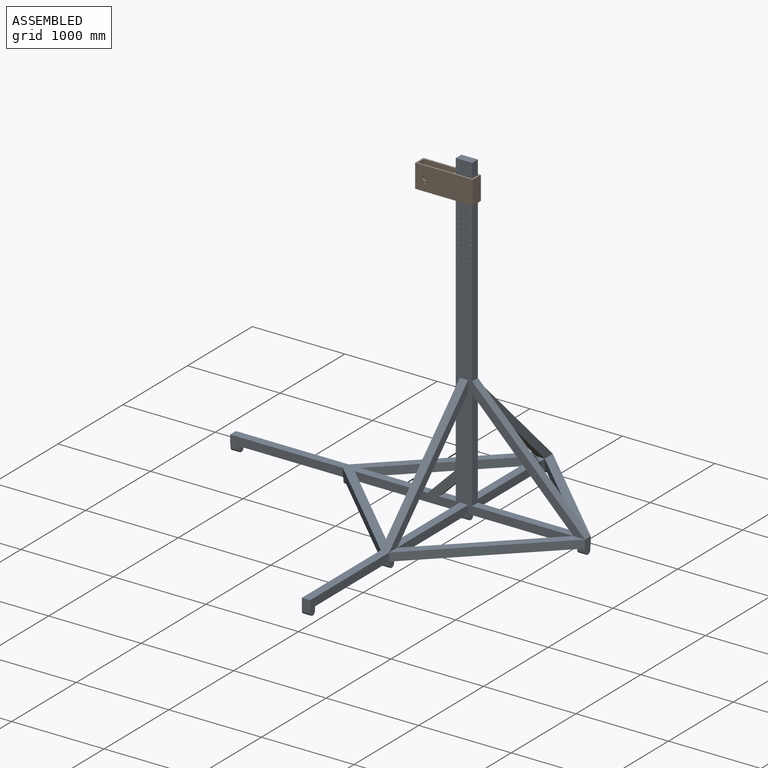
[diagram: assembled view]
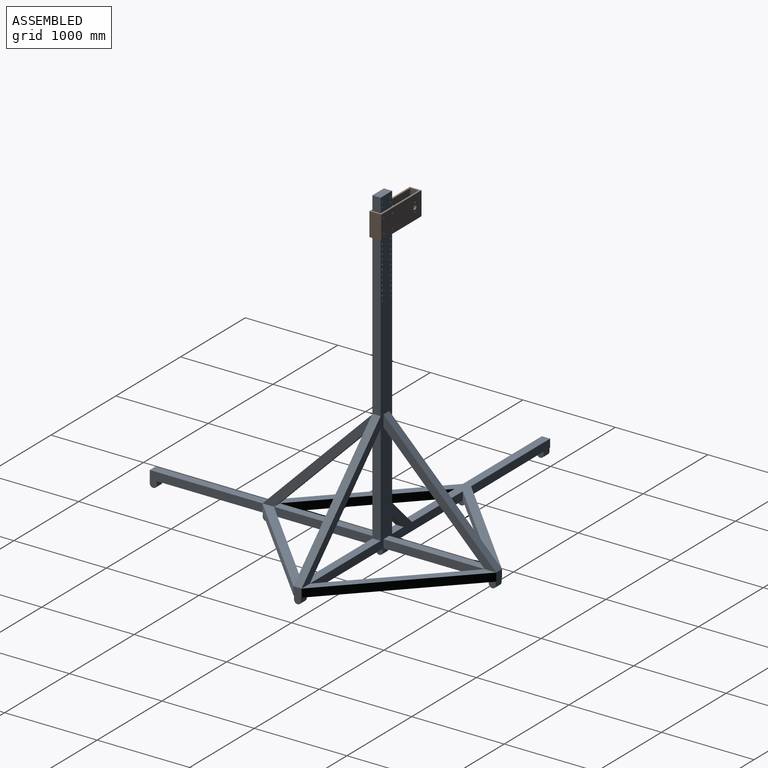
[diagram: assembled view, second angle]
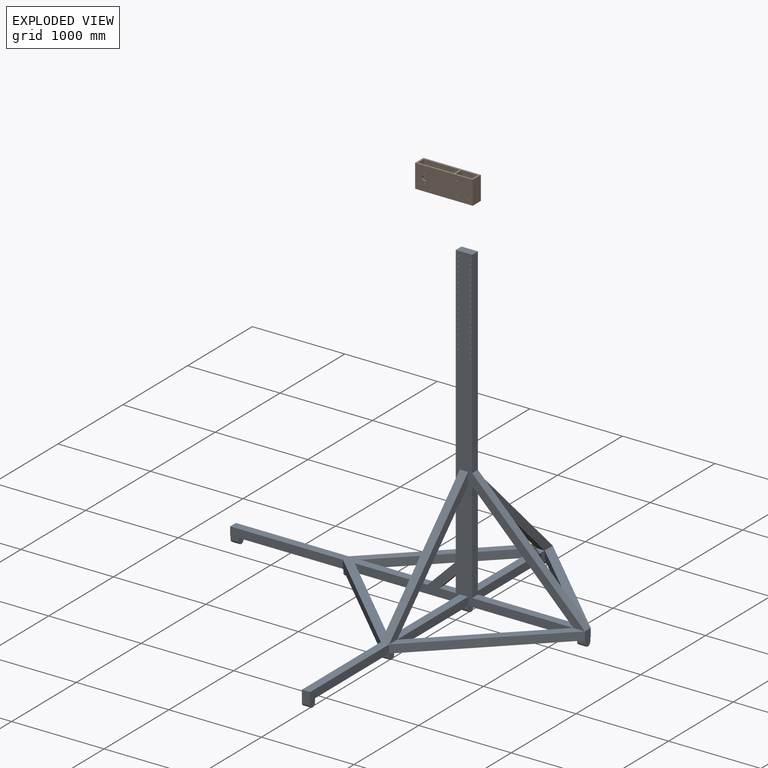
[diagram: exploded view]
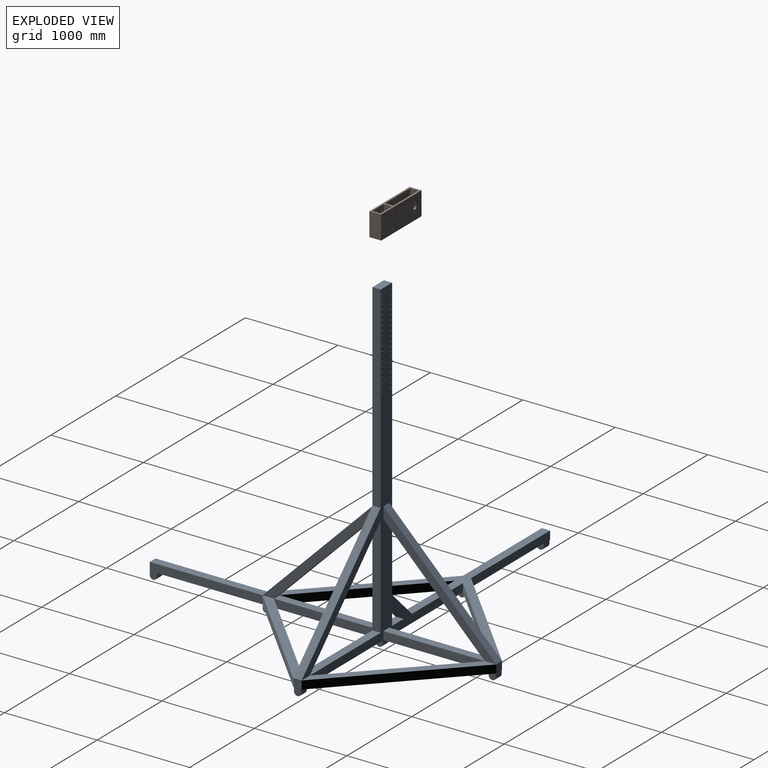
[diagram: exploded view, second angle]
ASSEMBLY  parts=2 mates=3
PART A: 112 faces, bbox 3835.4x3746.5x3517.9 mm
  f0: plane 3835.4x3670.3mm, normal (0,0,-1), area 1211481mm2, adj f1,f2,f3,f7,f10,f56,f57,f58
  f1: plane 1308.1x1219.2mm, normal (-1,0,0), area 242783.9mm2, adj f0,f2,f6,f55,f71,f72,f78
  f2: plane 3441.7x2488.16mm, normal (0,-1,0), area 957592.4mm2, adj f0,f1,f4,f5,f6,f8,f9,f12
  f3: plane 1219.2x165.1mm, normal (1,0,0), area 113570.3mm2, adj f0,f61,f62,f75,f82,f83
  f4: plane 179.08x88.9mm, normal (-1,0,0), area 15919.9mm2, adj f2,f5,f10,f73
  f5: plane 179.08x88.9mm, normal (0,0,1), area 15919.9mm2, adj f2,f4,f10,f73
  f6: plane 1093.48x88.9mm, normal (0,0,1), area 97210.1mm2, adj f1,f2,f60,f72
  f7: plane 1308.1x1219.2mm, normal (1,0,0), area 242783.9mm2, adj f0,f9,f10,f11,f63,f64,f68
  f8: plane 2133.6x88.9mm, normal (1,0,0), area 189677mm2, adj f2,f10,f14,f65
  f9: plane 2527.3x1263.65mm, normal (0,0,1), area 393596.3mm2, adj f2,f7,f10,f13,f60,f66,f67,f68
  f10: plane 3441.7x2488.16mm, normal (0,1,0), area 957592.4mm2, adj f0,f4,f5,f7,f8,f9,f11,f12
  f11: plane 1093.48x88.9mm, normal (0,0,1), area 97210.1mm2, adj f7,f10,f57,f64
  f12: plane 3048x88.9mm, normal (-1,0,0), area 270967.2mm2, adj f2,f10,f14,f74
  f13: plane 1093.48x88.9mm, normal (1,0,0), area 97210.1mm2, adj f2,f9,f10,f66
  f14: plane 177.8x88.9mm, normal (0,0,1), area 15806.4mm2, adj f2,f8,f10,f12
  f15: cylinder r=6.35mm len=88.9mm, axis (0,-1,0), area 3547mm2, adj f2,f10
  f16: cylinder r=6.35mm len=88.9mm, axis (0,-1,0), area 3547mm2, adj f2,f10
  f17: cylinder r=6.35mm len=88.9mm, axis (0,-1,0), area 3547mm2, adj f2,f10
  f18: cylinder r=6.35mm len=88.9mm, axis (0,-1,0), area 3547mm2, adj f2,f10
  f19: cylinder r=6.35mm len=88.9mm, axis (0,-1,0), area 3547mm2, adj f2,f10
  f20: cylinder r=6.35mm len=88.9mm, axis (0,-1,0), area 3547mm2, adj f2,f10
  f21: cylinder r=6.35mm len=88.9mm, axis (0,-1,0), area 3547mm2, adj f2,f10
  f22: cylinder r=6.35mm len=88.9mm, axis (0,-1,0), area 3547mm2, adj f2,f10
  f23: cylinder r=6.35mm len=88.9mm, axis (0,-1,0), area 3547mm2, adj f2,f10
  f24: cylinder r=6.35mm len=88.9mm, axis (0,-1,0), area 3547mm2, adj f2,f10
  f25: cylinder r=6.35mm len=88.9mm, axis (0,-1,0), area 3547mm2, adj f2,f10
  f26: cylinder r=6.35mm len=88.9mm, axis (0,-1,0), area 3547mm2, adj f2,f10
  f27: cylinder r=6.35mm len=88.9mm, axis (0,-1,0), area 3547mm2, adj f2,f10
  f28: cylinder r=6.35mm len=88.9mm, axis (0,-1,0), area 3547mm2, adj f2,f10
  f29: cylinder r=6.35mm len=88.9mm, axis (0,-1,0), area 3547mm2, adj f2,f10
  f30: cylinder r=6.35mm len=88.9mm, axis (0,-1,0), area 3547mm2, adj f2,f10
  f31: cylinder r=6.35mm len=88.9mm, axis (0,-1,0), area 3547mm2, adj f2,f10
  f32: cylinder r=6.35mm len=88.9mm, axis (0,-1,0), area 3547mm2, adj f2,f10
  f33: cylinder r=6.35mm len=88.9mm, axis (0,-1,0), area 3547mm2, adj f2,f10
  f34: cylinder r=6.35mm len=88.9mm, axis (0,-1,0), area 3547mm2, adj f2,f10
  f35: cylinder r=6.35mm len=88.9mm, axis (0,-1,0), area 3547mm2, adj f2,f10
  f36: cylinder r=6.35mm len=88.9mm, axis (0,-1,0), area 3547mm2, adj f2,f10
  f37: cylinder r=6.35mm len=88.9mm, axis (0,-1,0), area 3547mm2, adj f2,f10
  f38: cylinder r=6.35mm len=88.9mm, axis (0,-1,0), area 3547mm2, adj f2,f10
  f39: cylinder r=6.35mm len=88.9mm, axis (0,-1,0), area 3547mm2, adj f2,f10
  f40: cylinder r=6.35mm len=88.9mm, axis (0,-1,0), area 3547mm2, adj f2,f10
  f41: cylinder r=6.35mm len=88.9mm, axis (0,-1,0), area 3547mm2, adj f2,f10
  f42: cylinder r=6.35mm len=88.9mm, axis (0,-1,0), area 3547mm2, adj f2,f10
  f43: cylinder r=6.35mm len=88.9mm, axis (0,-1,0), area 3547mm2, adj f2,f10
  f44: cylinder r=6.35mm len=88.9mm, axis (0,-1,0), area 3547mm2, adj f2,f10
  f45: cylinder r=6.35mm len=88.9mm, axis (0,-1,0), area 3547mm2, adj f2,f10
  f46: cylinder r=6.35mm len=88.9mm, axis (0,-1,0), area 3547mm2, adj f2,f10
  f47: cylinder r=6.35mm len=88.9mm, axis (0,-1,0), area 3547mm2, adj f2,f10
  f48: cylinder r=6.35mm len=88.9mm, axis (0,-1,0), area 3547mm2, adj f2,f10
  f49: cylinder r=6.35mm len=88.9mm, axis (0,-1,0), area 3547mm2, adj f2,f10
  f50: cylinder r=6.35mm len=88.9mm, axis (0,-1,0), area 3547mm2, adj f2,f10
  f51: cylinder r=6.35mm len=88.9mm, axis (0,-1,0), area 3547mm2, adj f2,f10
  f52: cylinder r=6.35mm len=88.9mm, axis (0,-1,0), area 3547mm2, adj f2,f10
  f53: cylinder r=6.35mm len=88.9mm, axis (0,-1,0), area 3547mm2, adj f2,f10
  f54: cylinder r=6.35mm len=88.9mm, axis (0,-1,0), area 3547mm2, adj f2,f10
  f55: plane 2527.3x2482.85mm, normal (0,0,1), area 486063.3mm2, adj f1,f2,f10,f57,f69,f70,f74,f77
  f56: plane 165.1x88.9mm, normal (1,0,0), area 13086.6mm2, adj f0,f65,f67,f75,f103,f104,f105
  f57: plane 1308.1x1219.2mm, normal (-1,0,0), area 242783.9mm2, adj f0,f10,f11,f55,f63,f64,f70
  f58: plane 88.9x88.9mm, normal (0,1,0), area 7903.2mm2, adj f0,f63,f67,f69
  f59: plane 1219.2x165.1mm, normal (-1,0,0), area 113570.3mm2, adj f0,f61,f62,f77,f82,f83
  f60: plane 1308.1x1219.2mm, normal (1,0,0), area 242783.9mm2, adj f0,f2,f6,f9,f71,f72,f76
  f61: plane 127x88.9mm, normal (0,-1,0), area 11290.3mm2, adj f3,f59,f62,f83
  f62: plane 1219.2x88.9mm, normal (0,0,1), area 108386.9mm2, adj f3,f59,f61,f71
  f63: plane 1219.2x1219.2mm, normal (0,0.71,0.71), area 153282.2mm2, adj f7,f10,f57,f58
  f64: plane 1093.48x1093.48mm, normal (0,-0.71,-0.71), area 137475.8mm2, adj f7,f10,f11,f57
  f65: plane 1219.2x1219.2mm, normal (0.71,0,0.71), area 153282.2mm2, adj f2,f8,f10,f56
  f66: plane 1093.48x1093.48mm, normal (-0.71,0,-0.71), area 137475.8mm2, adj f2,f9,f10,f13
  f67: plane 1263.65x1219.2mm, normal (0.69,0.72,0), area 156101.4mm2, adj f0,f9,f56,f58
  f68: plane 1135.61x1095.67mm, normal (-0.69,-0.72,0), area 140284.9mm2, adj f0,f7,f9,f10
  f69: plane 1263.65x1219.2mm, normal (-0.69,0.72,0), area 156101.4mm2, adj f0,f55,f58,f81
  f70: plane 1135.61x1095.67mm, normal (0.69,-0.72,0), area 140284.9mm2, adj f0,f10,f55,f57
  f71: plane 1219.2x1219.2mm, normal (0,-0.71,0.71), area 153282.2mm2, adj f1,f2,f60,f62
  f72: plane 1093.48x1093.48mm, normal (0,0.71,-0.71), area 137475.8mm2, adj f1,f2,f6,f60
  f73: plane 179.08x179.08mm, normal (0.71,0,-0.71), area 22514.1mm2, adj f2,f4,f5,f10
  f74: plane 304.8x304.8mm, normal (-0.71,0,0.71), area 38320.5mm2, adj f2,f10,f12,f55
  f75: plane 1263.65x1219.2mm, normal (0.69,-0.72,0), area 156101.4mm2, adj f0,f3,f9,f56
  f76: plane 1135.61x1095.67mm, normal (-0.69,0.72,0), area 140284.9mm2, adj f0,f2,f9,f60
  f77: plane 1263.65x1219.2mm, normal (-0.69,-0.72,0), area 156101.4mm2, adj f0,f55,f59,f79
  f78: plane 1135.61x1095.67mm, normal (0.69,0.72,0), area 140284.9mm2, adj f0,f1,f2,f55
  f79: plane 1219.2x88.9mm, normal (0,-1,0), area 108386.9mm2, adj f0,f55,f77,f80
  f80: plane 165.1x88.9mm, normal (-1,0,0), area 13086.6mm2, adj f0,f55,f79,f81,f99,f100,f101
  f81: plane 1219.2x88.9mm, normal (0,1,0), area 108386.9mm2, adj f0,f55,f69,f80
  f82: plane 88.9x38.1mm, normal (0,1,0), area 3387.1mm2, adj f0,f3,f59,f83
  f83: cylinder r=38.1mm len=88.9mm, axis (-1,0,0), area 10640.9mm2, adj f3,f59,f61,f82
  f84: plane 88.9x38.1mm, normal (0,1,0), area 3387.1mm2, adj f0,f85,f87,f88
  f85: cylinder r=38.1mm len=88.9mm, axis (-1,0,0), area 10640.9mm2, adj f84,f86,f87,f88
  f86: plane 88.9x38.1mm, normal (0,-1,0), area 3387.1mm2, adj f0,f85,f87,f88
  f87: plane 76.2x76.2mm, normal (1,0,0), area 5183.4mm2, adj f0,f84,f85,f86
  f88: plane 76.2x76.2mm, normal (-1,0,0), area 5183.4mm2, adj f0,f84,f85,f86
  f89: plane 88.9x38.1mm, normal (0,1,0), area 3387.1mm2, adj f0,f90,f92,f93
  f90: cylinder r=38.1mm len=88.9mm, axis (-1,0,0), area 10640.9mm2, adj f89,f91,f92,f93
  f91: plane 88.9x38.1mm, normal (0,-1,0), area 3387.1mm2, adj f0,f90,f92,f93
  f92: plane 76.2x76.2mm, normal (1,0,0), area 5183.4mm2, adj f0,f89,f90,f91
  f93: plane 76.2x76.2mm, normal (-1,0,0), area 5183.4mm2, adj f0,f89,f90,f91
  f94: plane 88.9x38.1mm, normal (0,1,0), area 3387.1mm2, adj f0,f95,f97,f98
  f95: cylinder r=38.1mm len=88.9mm, axis (-1,0,0), area 10640.9mm2, adj f94,f96,f97,f98
  f96: plane 88.9x38.1mm, normal (0,-1,0), area 3387.1mm2, adj f0,f95,f97,f98
  f97: plane 76.2x76.2mm, normal (1,0,0), area 5183.4mm2, adj f0,f94,f95,f96
  f98: plane 76.2x76.2mm, normal (-1,0,0), area 5183.4mm2, adj f0,f94,f95,f96
  f99: cylinder r=38.1mm len=88.9mm, axis (-1,0,0), area 10640.9mm2, adj f80,f100,f101,f102
  f100: plane 88.9x38.1mm, normal (0,-1,0), area 3387.1mm2, adj f0,f80,f99,f102
  f101: plane 88.9x38.1mm, normal (0,1,0), area 3387.1mm2, adj f0,f80,f99,f102
  f102: plane 76.2x76.2mm, normal (1,0,0), area 5183.4mm2, adj f0,f99,f100,f101
  f103: cylinder r=38.1mm len=88.9mm, axis (1,0,0), area 10640.9mm2, adj f56,f104,f105,f106
  f104: plane 88.9x38.1mm, normal (0,1,0), area 3387.1mm2, adj f0,f56,f103,f106
  f105: plane 88.9x38.1mm, normal (0,-1,0), area 3387.1mm2, adj f0,f56,f103,f106
  f106: plane 76.2x76.2mm, normal (-1,0,0), area 5183.4mm2, adj f0,f103,f104,f105
  f107: cylinder r=38.1mm len=88.9mm, axis (-1,0,0), area 10640.9mm2, adj f108,f109,f110,f111
  f108: plane 88.9x38.1mm, normal (0,1,0), area 3387.1mm2, adj f0,f107,f110,f111
  f109: plane 88.9x38.1mm, normal (0,-1,0), area 3387.1mm2, adj f0,f107,f110,f111
  f110: plane 76.2x76.2mm, normal (1,0,0), area 5183.4mm2, adj f0,f107,f108,f109
  f111: plane 76.2x76.2mm, normal (-1,0,0), area 5183.4mm2, adj f0,f107,f108,f109
PART B: 28 faces, bbox 622.3x127x254 mm
  f0: plane 622.3x127mm, normal (0,0,1), area 28790.3mm2, adj f2,f3,f4,f5,f6,f7,f8,f9
  f1: plane 622.3x127mm, normal (0,0,-1), area 28790.3mm2, adj f2,f3,f4,f5,f6,f7,f8,f9
  f2: plane 254x127mm, normal (-1,0,0), area 32258mm2, adj f0,f1,f4,f5
  f3: plane 254x127mm, normal (1,0,0), area 32258mm2, adj f0,f1,f4,f5
  f4: plane 622.3x254mm, normal (0,-1,0), area 155277.3mm2, adj f0,f1,f2,f3,f14,f15,f16,f17
  f5: plane 622.3x254mm, normal (0,1,0), area 155277.3mm2, adj f0,f1,f2,f3,f18,f19,f20,f21
  f6: plane 387.35x254mm, normal (0,-1,0), area 96106.7mm2, adj f0,f1,f7,f9,f23,f26,f27
  f7: plane 254x88.9mm, normal (1,0,0), area 22580.6mm2, adj f0,f1,f6,f8
  f8: plane 387.35x254mm, normal (0,1,0), area 96106.7mm2, adj f0,f1,f7,f9,f22,f24,f25
  f9: plane 254x88.9mm, normal (-1,0,0), area 22580.6mm2, adj f0,f1,f6,f8
  f10: plane 254x177.8mm, normal (0,-1,0), area 44654.5mm2, adj f0,f1,f11,f13,f18,f19,f20,f21
  f11: plane 254x88.9mm, normal (1,0,0), area 22580.6mm2, adj f0,f1,f10,f12
  f12: plane 254x177.8mm, normal (0,1,0), area 44654.5mm2, adj f0,f1,f11,f13,f14,f15,f16,f17
  f13: plane 254x88.9mm, normal (-1,0,0), area 22580.6mm2, adj f0,f1,f10,f12
  f14: cylinder r=6.35mm len=19.05mm, axis (0,-1,0), area 760.1mm2, adj f4,f12
  f15: cylinder r=6.35mm len=19.05mm, axis (0,-1,0), area 760.1mm2, adj f4,f12
  f16: cylinder r=6.35mm len=19.05mm, axis (0,-1,0), area 760.1mm2, adj f4,f12
  f17: cylinder r=6.35mm len=19.05mm, axis (0,-1,0), area 760.1mm2, adj f4,f12
  f18: cylinder r=6.35mm len=19.05mm, axis (0,-1,0), area 760.1mm2, adj f5,f10
  f19: cylinder r=6.35mm len=19.05mm, axis (0,-1,0), area 760.1mm2, adj f5,f10
  f20: cylinder r=6.35mm len=19.05mm, axis (0,-1,0), area 760.1mm2, adj f5,f10
  f21: cylinder r=6.35mm len=19.05mm, axis (0,-1,0), area 760.1mm2, adj f5,f10
  f22: cylinder r=25.4mm len=50.8mm, axis (0,-1,0), area 3040.2mm2, adj f4,f8
  f23: cylinder r=25.4mm len=50.8mm, axis (0,-1,0), area 3040.2mm2, adj f5,f6
  f24: cylinder r=6.35mm len=19.05mm, axis (0,-1,0), area 760.1mm2, adj f4,f8
  f25: cylinder r=6.35mm len=19.05mm, axis (0,-1,0), area 760.1mm2, adj f4,f8
  f26: cylinder r=6.35mm len=19.05mm, axis (0,-1,0), area 760.1mm2, adj f5,f6
  f27: cylinder r=6.35mm len=19.05mm, axis (0,-1,0), area 760.1mm2, adj f5,f6
PLACE A at identity fixed
PLACE B rot(axis=(0,0,1),180deg) t=(196.85,-19.05,2946.4)mm
MATE cylindrical B.f14 <-> A.f53  axis (0,1,0) through (152.4,0,3149.6)mm
MATE planar B.f12 <-> A.f10  axis (0,-1,0) through (88.9,88.9,3073.4)mm
MATE planar A.f12 <-> B.f13  axis (-1,0,0) through (0,44.45,3352.8)mm
